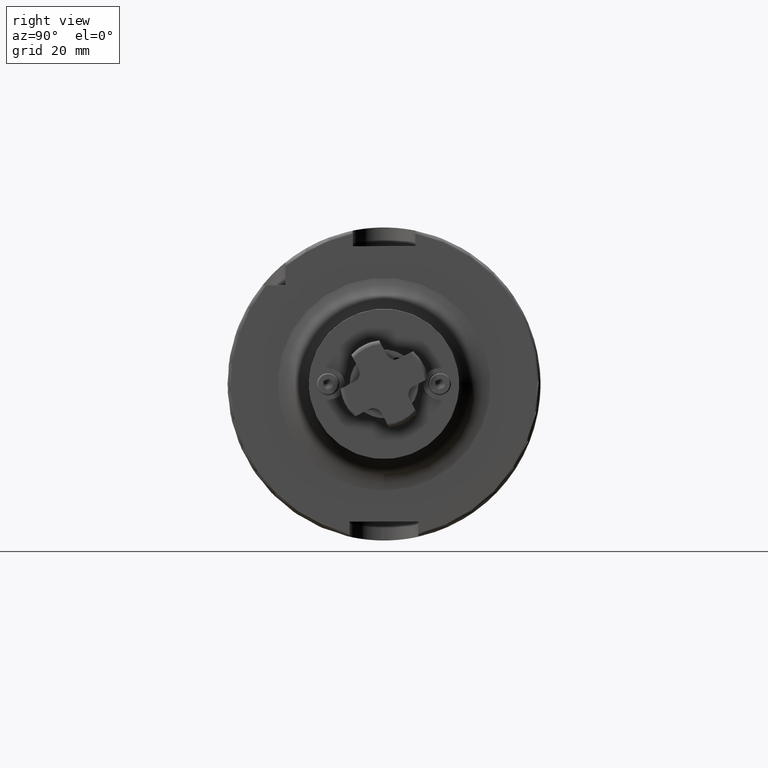
[diagram: clean part render]
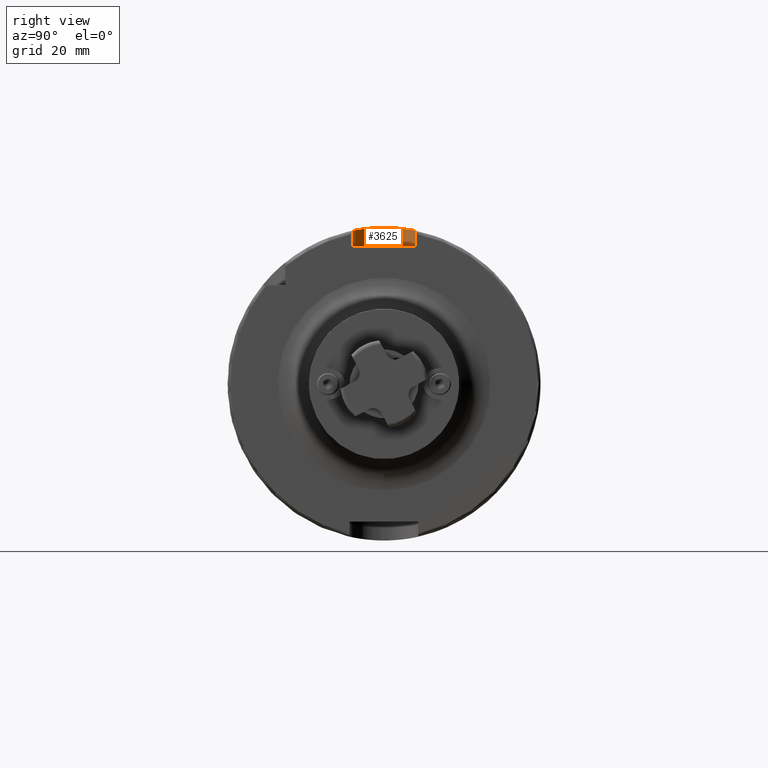
[diagram: same view with one face highlighted and labeled with its STEP entity id]
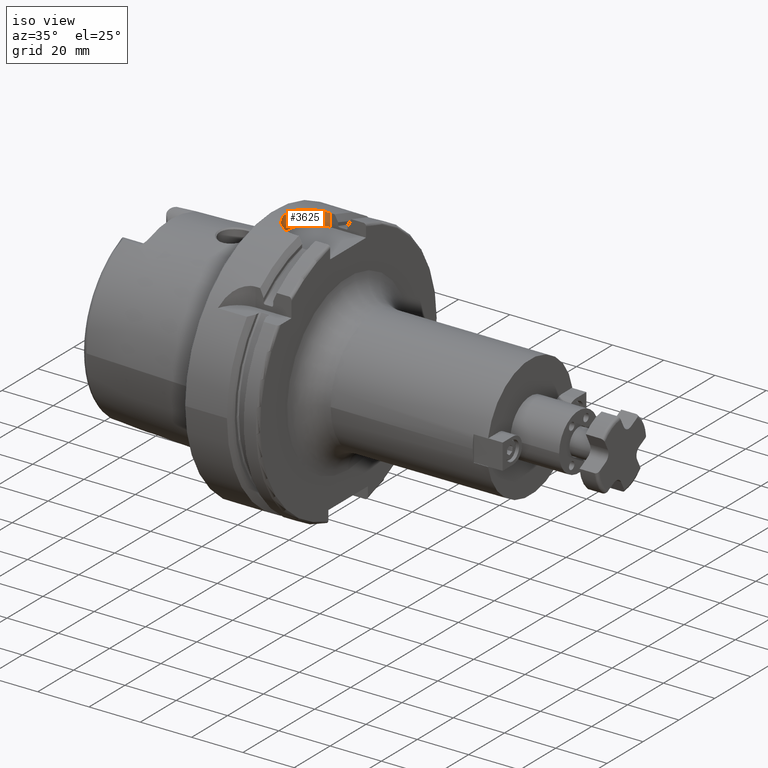
[diagram: same view with one face highlighted and labeled with its STEP entity id]
A machine part, right view. The second image highlights one B-rep face of the part: STEP entity #3625.
A second angle (iso view) of the same face is appended — the face is thin or edge-on in the first view.
In plain terms, the highlighted cylindrical surface (edge-blend (fillet) strip) has radius 10 mm, axis along (0, 0, 1).
Its self-contained STEP definition (entity closure, byte-faithful):
#607=B_SPLINE_CURVE_WITH_KNOTS('',3,(#6573,#6574,#6575,#6576,#6577,#6578,
#6579,#6580,#6581,#6582,#6583,#6584,#6585,#6586,#6587,#6588,#6589,#6590),
 .UNSPECIFIED.,.F.,.F.,(4,2,2,2,2,2,2,2,4),(0.,0.377795255890194,0.755590511780389,
1.13336459804459,1.51113868430879,1.88891277057299,2.26668685683718,2.64448211272738,
3.02227736861757),.UNSPECIFIED.);
#795=CYLINDRICAL_SURFACE('',#4103,10.);
#905=FACE_OUTER_BOUND('',#1099,.T.);
#1099=EDGE_LOOP('',(#3046,#3047,#3048,#3049));
#1314=LINE('',#6881,#1504);
#1315=LINE('',#6885,#1505);
#1504=VECTOR('',#4854,10.);
#1505=VECTOR('',#4859,10.);
#1679=CIRCLE('',#4104,10.);
#1957=VERTEX_POINT('',#6570);
#1958=VERTEX_POINT('',#6572);
#2004=VERTEX_POINT('',#6879);
#2005=VERTEX_POINT('',#6883);
#2312=EDGE_CURVE('',#1957,#1958,#607,.T.);
#2388=EDGE_CURVE('',#2004,#1957,#1314,.T.);
#2389=EDGE_CURVE('',#2005,#2004,#1679,.T.);
#2390=EDGE_CURVE('',#2005,#1958,#1315,.T.);
#3046=ORIENTED_EDGE('',*,*,#2312,.F.);
#3047=ORIENTED_EDGE('',*,*,#2388,.F.);
#3048=ORIENTED_EDGE('',*,*,#2389,.F.);
#3049=ORIENTED_EDGE('',*,*,#2390,.T.);
#3625=ADVANCED_FACE('',(#905),#795,.F.);
#4103=AXIS2_PLACEMENT_3D('',#6882,#4855,#4856);
#4104=AXIS2_PLACEMENT_3D('',#6884,#4857,#4858);
#4854=DIRECTION('',(0.,0.,1.));
#4855=DIRECTION('center_axis',(0.,0.,1.));
#4856=DIRECTION('ref_axis',(0.,1.,0.));
#4857=DIRECTION('center_axis',(0.,0.,1.));
#4858=DIRECTION('ref_axis',(0.,1.,0.));
#4859=DIRECTION('',(0.,0.,1.));
#6570=CARTESIAN_POINT('',(15.,-10.,48.9897948556636));
#6572=CARTESIAN_POINT('',(15.,10.,48.9897948556636));
#6573=CARTESIAN_POINT('Ctrl Pts',(15.,-10.,48.9897948556636));
#6574=CARTESIAN_POINT('Ctrl Pts',(13.740682480366,-10.,48.9897948556636));
#6575=CARTESIAN_POINT('Ctrl Pts',(12.3998222283811,-9.74762796248614,49.0433876618447));
#6576=CARTESIAN_POINT('Ctrl Pts',(9.93707994969945,-8.72605417648382,49.2354150792771));
#6577=CARTESIAN_POINT('Ctrl Pts',(8.81489539818993,-7.95703102192089,49.3709085101933));
#6578=CARTESIAN_POINT('Ctrl Pts',(7.04301862271998,-6.18515424645094,49.6240337638318));
#6579=CARTESIAN_POINT('Ctrl Pts',(6.27395658455242,-5.06294861197626,49.7583347151863));
#6580=CARTESIAN_POINT('Ctrl Pts',(5.25235457764165,-2.60013306081865,49.9476188647081));
#6581=CARTESIAN_POINT('Ctrl Pts',(4.99999999999999,-1.259246954214,50.));
#6582=CARTESIAN_POINT('Ctrl Pts',(4.99999999999999,1.259246954214,50.));
#6583=CARTESIAN_POINT('Ctrl Pts',(5.25235457764165,2.60013306081865,49.9476188647081));
#6584=CARTESIAN_POINT('Ctrl Pts',(6.27395658455242,5.06294861197626,49.7583347151863));
#6585=CARTESIAN_POINT('Ctrl Pts',(7.04301862271998,6.18515424645094,49.6240337638318));
#6586=CARTESIAN_POINT('Ctrl Pts',(8.81489539818993,7.95703102192089,49.3709085101933));
#6587=CARTESIAN_POINT('Ctrl Pts',(9.93707994969945,8.72605417648382,49.2354150792771));
#6588=CARTESIAN_POINT('Ctrl Pts',(12.3998222283811,9.74762796248614,49.0433876618447));
#6589=CARTESIAN_POINT('Ctrl Pts',(13.740682480366,10.,48.9897948556636));
#6590=CARTESIAN_POINT('Ctrl Pts',(15.,10.,48.9897948556636));
#6879=CARTESIAN_POINT('',(15.,-10.,44.));
#6881=CARTESIAN_POINT('',(15.,-10.,44.));
#6882=CARTESIAN_POINT('Origin',(15.,0.,44.));
#6883=CARTESIAN_POINT('',(15.,10.,44.));
#6884=CARTESIAN_POINT('Origin',(15.,0.,44.));
#6885=CARTESIAN_POINT('',(15.,10.,44.));